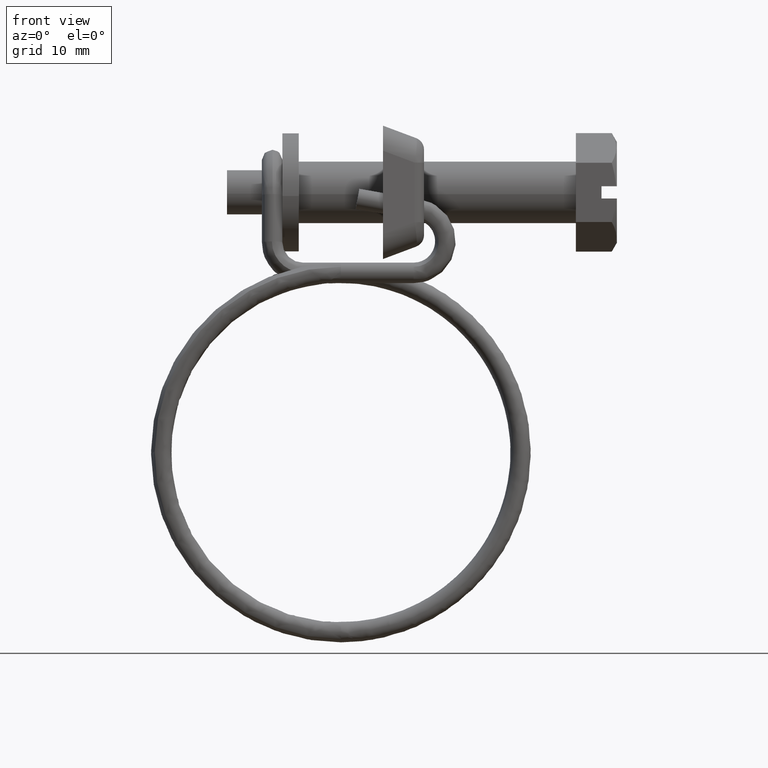
[diagram: clean part render]
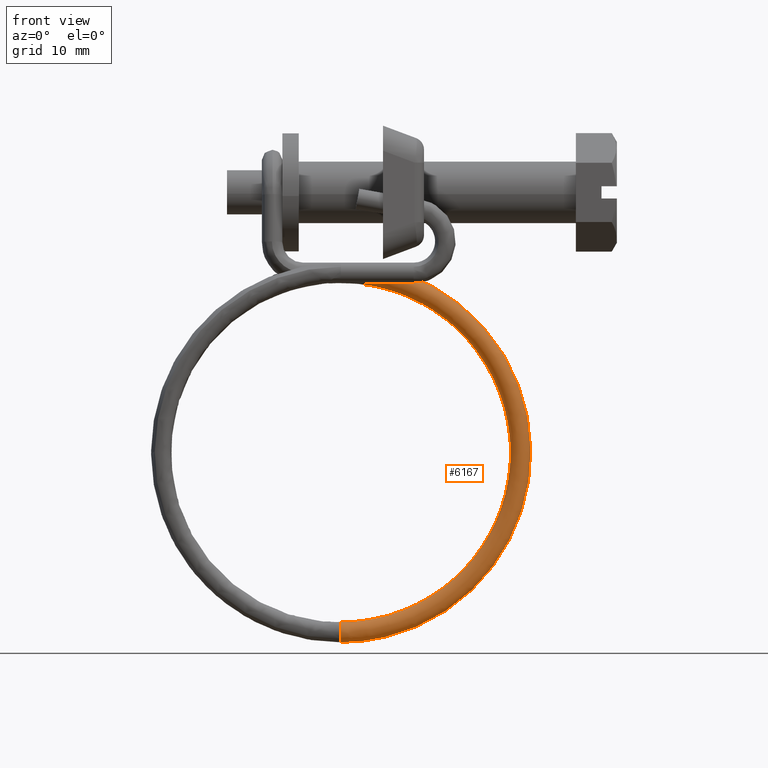
[diagram: same view with one face highlighted and labeled with its STEP entity id]
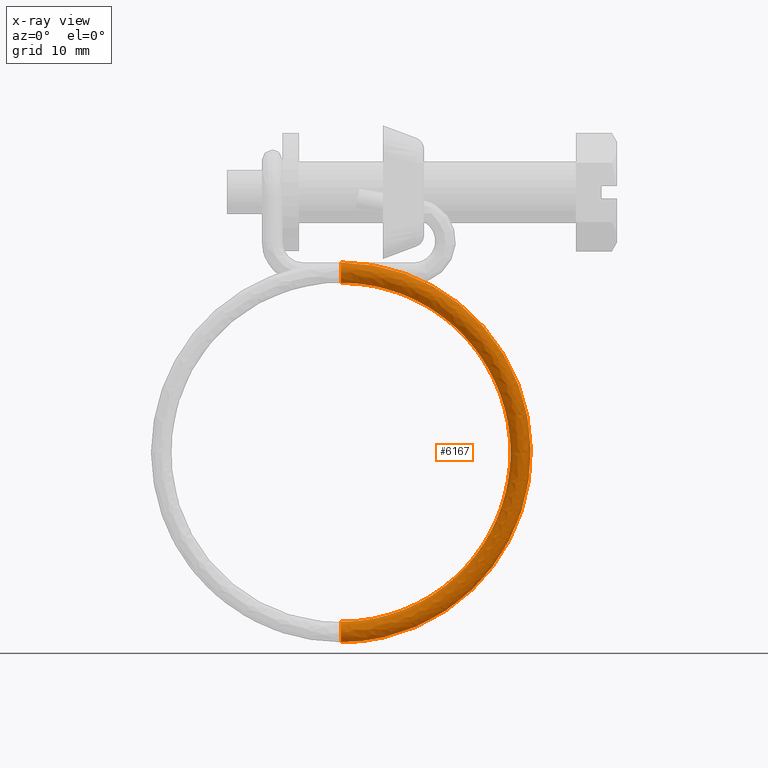
[diagram: x-ray of the same camera — body ghosted, the highlighted face saturated]
A machine part, front view. The second image highlights one B-rep face of the part: STEP entity #6167.
The next image is the same camera in x-ray: the body ghosted, the highlighted face saturated — about 0% of this face is hidden behind the body in this view.
In plain terms, the highlighted face is a freeform B-spline surface patch.
Its self-contained STEP definition (entity closure, byte-faithful):
#4777=CARTESIAN_POINT('',(-22.899997493855611,-3.594625165116509,-8.558833505469480));
#4778=VERTEX_POINT('',#4777);
#4784=CARTESIAN_POINT('',(-22.899997537313531,-4.300002000000000,-8.850001000000280));
#4785=VERTEX_POINT('',#4784);
#4786=CARTESIAN_POINT('',(-22.899997537313531,-4.300002000000000,-8.850001000000280));
#4787=CARTESIAN_POINT('',(-22.899997537313475,-3.887219142246950,-8.850001000000280));
#4788=CARTESIAN_POINT('',(-22.899997493855608,-3.594625165116509,-8.558833505469480));
#4796=(BOUNDED_CURVE()B_SPLINE_CURVE(2,(#4786,#4787,#4788),.UNSPECIFIED.,.F.,.U.)B_SPLINE_CURVE_WITH_KNOTS((3,3),(0.500000000000000,0.624631288991224),.UNSPECIFIED.)CURVE()GEOMETRIC_REPRESENTATION_ITEM()RATIONAL_B_SPLINE_CURVE((1.0,0.853985362409963,0.853554664775388))REPRESENTATION_ITEM(''));
#4797=EDGE_CURVE('',#4785,#4778,#4796,.T.);
#4799=CARTESIAN_POINT('',(-22.899997487115559,-5.048016384914225,-8.513685173815059));
#4800=VERTEX_POINT('',#4799);
#4801=CARTESIAN_POINT('',(-22.899997487115559,-5.048016384914226,-8.513685173815061));
#4802=CARTESIAN_POINT('',(-22.899997537313524,-4.749616013432974,-8.850000648478401));
#4803=CARTESIAN_POINT('',(-22.899997537313531,-4.300002000000000,-8.850001000000280));
#4811=(BOUNDED_CURVE()B_SPLINE_CURVE(2,(#4801,#4802,#4803),.UNSPECIFIED.,.F.,.U.)B_SPLINE_CURVE_WITH_KNOTS((3,3),(0.365994075443312,0.500000000000000),.UNSPECIFIED.)CURVE()GEOMETRIC_REPRESENTATION_ITEM()RATIONAL_B_SPLINE_CURVE((0.854313569656607,0.843002293666076,1.0))REPRESENTATION_ITEM(''));
#4812=EDGE_CURVE('',#4800,#4785,#4811,.T.);
#4862=CARTESIAN_POINT('',(-22.899997238802140,-4.306285020212719,-6.850040477901752));
#4863=VERTEX_POINT('',#4862);
#4864=CARTESIAN_POINT('',(-22.899997238802143,-4.306285020212720,-6.850040477901751));
#4865=CARTESIAN_POINT('',(-22.899997239734166,-5.300001690583930,-6.856284072009016));
#4866=CARTESIAN_POINT('',(-22.899997388056391,-5.300001341734709,-7.850010371521843));
#4867=CARTESIAN_POINT('',(-22.899997444725919,-5.300001208449774,-8.229683704826941));
#4868=CARTESIAN_POINT('',(-22.899997487115570,-5.048016384914225,-8.513685173815059));
#4876=(BOUNDED_CURVE()B_SPLINE_CURVE(2,(#4864,#4865,#4866,#4867,#4868),.UNSPECIFIED.,.F.,.U.)B_SPLINE_CURVE_WITH_KNOTS((3,2,3),(0.001109280935318,0.250000000000000,0.365994075443312),.UNSPECIFIED.)CURVE()GEOMETRIC_REPRESENTATION_ITEM()RATIONAL_B_SPLINE_CURVE((0.997412326092978,0.708406384641402,1.0,0.864104487520472,0.854313569656607))REPRESENTATION_ITEM(''));
#4877=EDGE_CURVE('',#4863,#4800,#4876,.T.);
#4879=CARTESIAN_POINT('',(-22.899997371410659,-3.302436454690028,-7.780265909787154));
#4880=VERTEX_POINT('',#4879);
#4894=CARTESIAN_POINT('',(-22.899997493855608,-3.594625165116509,-8.558833505469480));
#4895=CARTESIAN_POINT('',(-22.899997450096347,-3.300001999999999,-8.265646715847154));
#4896=CARTESIAN_POINT('',(-22.899997388059681,-3.300002000000000,-7.850001000000290));
#4897=CARTESIAN_POINT('',(-22.899997382849225,-3.300002000000000,-7.815090961440141));
#4898=CARTESIAN_POINT('',(-22.899997371410663,-3.302436454690028,-7.780265909787154));
#4906=(BOUNDED_CURVE()B_SPLINE_CURVE(2,(#4894,#4895,#4896,#4897,#4898),.UNSPECIFIED.,.F.,.U.)B_SPLINE_CURVE_WITH_KNOTS((3,2,3),(0.624631288991224,0.750000000000000,0.762166630449930),.UNSPECIFIED.)CURVE()GEOMETRIC_REPRESENTATION_ITEM()RATIONAL_B_SPLINE_CURVE((0.853554664775388,0.853121418776584,1.0,0.985745905781624,0.972879205937277))REPRESENTATION_ITEM(''));
#4907=EDGE_CURVE('',#4778,#4880,#4906,.T.);
#6029=CARTESIAN_POINT('',(-25.384641624035474,-3.303985178550675,-7.934457356040085));
#6030=CARTESIAN_POINT('',(-5.308109697518043,-3.303985178550673,-5.070177726836388));
#6031=CARTESIAN_POINT('',(-5.308109697518043,-3.303985178550676,-25.350000999999907));
#6032=CARTESIAN_POINT('',(-5.308109697518037,-3.303985178550673,-45.629827994496686));
#6033=CARTESIAN_POINT('',(-25.384644787739980,-3.303985178550674,-42.765544192599862));
#6034=CARTESIAN_POINT('',(-25.383070318414077,-3.303207486802163,-7.945471073818343));
#6035=CARTESIAN_POINT('',(-5.319234938219031,-3.303207486802161,-5.083002836100268));
#6036=CARTESIAN_POINT('',(-5.319234938219031,-3.303207486802162,-25.350000999999907));
#6037=CARTESIAN_POINT('',(-5.319234938219026,-3.303207486802162,-45.617002882879405));
#6038=CARTESIAN_POINT('',(-25.383073480117837,-3.303207486802161,-42.754530475107039));
#6039=CARTESIAN_POINT('',(-25.377479876787852,-3.300440590111870,-7.984656032803364));
#6040=CARTESIAN_POINT('',(-5.358816677041799,-3.300440590111871,-5.128632421913284));
#6041=CARTESIAN_POINT('',(-5.358816677041797,-3.300440590111870,-25.350000999999899));
#6042=CARTESIAN_POINT('',(-5.358816677041795,-3.300440590111870,-45.571373288693415));
#6043=CARTESIAN_POINT('',(-25.377483031373298,-3.300440590111871,-42.715345517137600));
#6044=CARTESIAN_POINT('',(-25.373438031854082,-3.300080955796183,-8.012986447204098));
#6045=CARTESIAN_POINT('',(-5.387433960116649,-3.300080955796185,-5.161622250370446));
#6046=CARTESIAN_POINT('',(-5.387433960116649,-3.300080955796184,-25.350000999999899));
#6047=CARTESIAN_POINT('',(-5.387433960116645,-3.300080955796184,-45.538383454182657));
#6048=CARTESIAN_POINT('',(-25.373441181293025,-3.300080955796184,-42.687015103471111));
#6049=CARTESIAN_POINT('',(-25.232211284502934,-3.287514915912832,-9.002883967392053));
#6050=CARTESIAN_POINT('',(-6.387355004320466,-3.287514915912832,-6.314325098950029));
#6051=CARTESIAN_POINT('',(-6.387355004320466,-3.287514915912832,-25.350000999999896));
#6052=CARTESIAN_POINT('',(-6.387355004320463,-3.287514915912833,-44.385680394082904));
#6053=CARTESIAN_POINT('',(-25.232214254117270,-3.287514915912832,-41.697117608938392));
#6054=CARTESIAN_POINT('',(-25.230436483432289,-4.287435960116647,-9.015324041327112));
#6055=CARTESIAN_POINT('',(-6.399921044203819,-4.287435960116648,-6.328811152676839));
#6056=CARTESIAN_POINT('',(-6.399921044203818,-4.287435960116647,-25.350000999999899));
#6057=CARTESIAN_POINT('',(-6.399921044203816,-4.287435960116647,-44.371194337697901));
#6058=CARTESIAN_POINT('',(-25.230439450786765,-4.287435960116647,-41.684677535325754));
#6059=CARTESIAN_POINT('',(-25.228661682361640,-5.287357004320461,-9.027764115262169));
#6060=CARTESIAN_POINT('',(-6.412487084087175,-5.287357004320465,-6.343297206403651));
#6061=CARTESIAN_POINT('',(-6.412487084087172,-5.287357004320464,-25.350000999999896));
#6062=CARTESIAN_POINT('',(-6.412487084087168,-5.287357004320462,-44.356708281312919));
#6063=CARTESIAN_POINT('',(-25.228664647456263,-5.287357004320464,-41.672237461713095));
#6064=CARTESIAN_POINT('',(-25.369888429712798,-5.299923044203815,-8.037866595074211));
#6065=CARTESIAN_POINT('',(-5.412566039883358,-5.299923044203815,-5.190594357824065));
#6066=CARTESIAN_POINT('',(-5.412566039883355,-5.299923044203815,-25.350000999999899));
#6067=CARTESIAN_POINT('',(-5.412566039883352,-5.299923044203815,-45.509411341412658));
#6068=CARTESIAN_POINT('',(-25.369891574632014,-5.299923044203815,-42.662134956245815));
#6069=CARTESIAN_POINT('',(-25.511115177063942,-5.312489084087168,-7.047969074886256));
#6070=CARTESIAN_POINT('',(-4.412644995679544,-5.312489084087170,-4.037891509244482));
#6071=CARTESIAN_POINT('',(-4.412644995679539,-5.312489084087169,-25.350000999999896));
#6072=CARTESIAN_POINT('',(-4.412644995679536,-5.312489084087169,-46.662114401512412));
#6073=CARTESIAN_POINT('',(-25.511118501807768,-5.312489084087169,-43.652032450778535));
#6074=CARTESIAN_POINT('',(-25.512914515847175,-4.298743518586963,-7.035357009304416));
#6075=CARTESIAN_POINT('',(-4.399905222592963,-4.298743518586965,-4.023205176946271));
#6076=CARTESIAN_POINT('',(-4.399905222592965,-4.298743518586965,-25.350000999999910));
#6077=CARTESIAN_POINT('',(-4.399905222592962,-4.298743518586965,-46.676800736505555));
#6078=CARTESIAN_POINT('',(-25.512917842882114,-4.298743518586965,-43.664644516033491));
#6079=CARTESIAN_POINT('',(-25.512938774117064,-4.285076435014014,-7.035186976349205));
#6080=CARTESIAN_POINT('',(-4.399733467914671,-4.285076435014017,-4.023007179206276));
#6081=CARTESIAN_POINT('',(-4.399733467914670,-4.285076435014016,-25.350000999999899));
#6082=CARTESIAN_POINT('',(-4.399733467914667,-4.285076435014015,-46.676998734281867));
#6083=CARTESIAN_POINT('',(-25.512942101182883,-4.285076435014014,-43.664814548984282));
#6091=(BOUNDED_SURFACE()B_SPLINE_SURFACE(2,2,((#6029,#6034,#6039,#6044,#6049,#6054,#6059,#6064,#6069,#6074,#6079),(#6030,#6035,#6040,#6045,#6050,#6055,#6060,#6065,#6070,#6075,#6080),(#6031,#6036,#6041,#6046,#6051,#6056,#6061,#6066,#6071,#6076,#6081),(#6032,#6037,#6042,#6047,#6052,#6057,#6062,#6067,#6072,#6077,#6082),(#6033,#6038,#6043,#6048,#6053,#6058,#6063,#6068,#6073,#6078,#6083)),.UNSPECIFIED.,.F.,.F.,.U.)B_SPLINE_SURFACE_WITH_KNOTS((3,2,3),(3,1,2,2,2,1,3),(0.0,33.770782778250073,67.541569608173361),(0.0,0.025223173646860,0.091497280422581,1.748351529914964,3.405205779407347,5.062060028899730,5.094642044299226),.UNSPECIFIED.)GEOMETRIC_REPRESENTATION_ITEM()RATIONAL_B_SPLINE_SURFACE(((0.965014474259884,0.969098491305001,0.983913298436704,0.995577199737466,0.703979389129076,0.995577199737466,0.703979389129076,0.995577199737466,0.703979389129076,1.001311466561849,1.007045733386232),(0.633749738992534,0.636431817661218,0.646161081214640,0.653821064149779,0.462321308142913,0.653821064149779,0.462321308142913,0.653821064149779,0.462321308142913,0.657586904145136,0.661352744140493),(0.969301501193838,0.973403661273633,0.988284282420452,1.0,0.707106781186548,1.0,0.707106781186548,1.0,0.707106781186548,1.005759741008427,1.011519482016854),(0.633749698734477,0.636431777232786,0.646161040168170,0.653821022616719,0.462321278774605,0.653821022616719,0.462321278774605,0.653821022616719,0.462321278774605,0.657586862372857,0.661352702128994),(0.965014553747329,0.969098571128843,0.983913379480830,0.995577281742337,0.703979447115277,0.995577281742337,0.703979447115277,0.995577281742337,0.703979447115277,1.001311549039047,1.007045816335757)))REPRESENTATION_ITEM('')SURFACE());
#6092=CARTESIAN_POINT('',(-22.899999999999949,-4.300002000000002,-41.850000999999892));
#6093=VERTEX_POINT('',#6092);
#6094=CARTESIAN_POINT('',(-22.899999999948619,-3.302485887047033,-42.919730658116258));
#6095=VERTEX_POINT('',#6094);
#6096=CARTESIAN_POINT('',(-22.899999999999949,-4.300002000000002,-41.850000999999892));
#6097=CARTESIAN_POINT('',(-22.899999999993678,-4.038196562363256,-41.850001438668457));
#6098=CARTESIAN_POINT('',(-22.899999999984690,-3.778000607902756,-41.957775164691583));
#6099=CARTESIAN_POINT('',(-22.899999999966330,-3.407742631726008,-42.328016695221763));
#6100=CARTESIAN_POINT('',(-22.899999999957071,-3.299960596688536,-42.588204614319579));
#6101=CARTESIAN_POINT('',(-22.899999999949749,-3.299953531839383,-42.873276473191083));
#6102=CARTESIAN_POINT('',(-22.899999999949170,-3.300804581628336,-42.896535733665687));
#6103=CARTESIAN_POINT('',(-22.899999999948619,-3.302485887047033,-42.919730658116258));
#6104=B_SPLINE_CURVE_WITH_KNOTS('',3,(#6096,#6097,#6098,#6099,#6100,#6101,#6102,#6103),.UNSPECIFIED.,.F.,.U.,(4,2,2,4),(0.500000000000000,0.625000000000000,0.750000000000000,0.761111541838291),.UNSPECIFIED.);
#6105=EDGE_CURVE('',#6093,#6095,#6104,.T.);
#6106=ORIENTED_EDGE('',*,*,#6105,.F.);
#6107=CARTESIAN_POINT('',(-22.899999999999970,-5.028950033060481,-43.534537691727238));
#6108=VERTEX_POINT('',#6107);
#6109=CARTESIAN_POINT('',(-22.899999999999970,-5.028950033060481,-43.534537691727238));
#6110=CARTESIAN_POINT('',(-22.899999999999942,-5.200678353061446,-43.351170000365492));
#6111=CARTESIAN_POINT('',(-22.899999999999949,-5.300001999999999,-43.101328363330857));
#6112=CARTESIAN_POINT('',(-22.899999999999949,-5.300002000000001,-42.588201612200763));
#6113=CARTESIAN_POINT('',(-22.899999999999949,-5.192228903609815,-42.328014341236617));
#6114=CARTESIAN_POINT('',(-22.899999999999949,-4.821988658763284,-41.957774096390096));
#6115=CARTESIAN_POINT('',(-22.899999999999949,-4.561801387799152,-41.850000999999892));
#6116=CARTESIAN_POINT('',(-22.899999999999949,-4.300002000000002,-41.850000999999892));
#6117=B_SPLINE_CURVE_WITH_KNOTS('',3,(#6109,#6110,#6111,#6112,#6113,#6114,#6115,#6116),.UNSPECIFIED.,.F.,.U.,(4,2,2,4),(0.130000023374876,0.250000000000000,0.375000000000000,0.500000000000000),.UNSPECIFIED.);
#6118=EDGE_CURVE('',#6108,#6093,#6117,.T.);
#6119=ORIENTED_EDGE('',*,*,#6118,.F.);
#6120=CARTESIAN_POINT('',(-22.899999999680229,-4.306285019941678,-43.849961522101808));
#6121=VERTEX_POINT('',#6120);
#6122=CARTESIAN_POINT('',(-22.899999999680229,-4.306285019941678,-43.849961522101808));
#6123=CARTESIAN_POINT('',(-22.899999999776998,-4.565959695528956,-43.848258487162042));
#6124=CARTESIAN_POINT('',(-22.899999999890142,-4.823469649266767,-43.740740414064732));
#6125=CARTESIAN_POINT('',(-22.899999999992119,-5.014513617673533,-43.549702481591403));
#6126=CARTESIAN_POINT('',(-22.899999999996041,-5.021794702308013,-43.542177764380732));
#6127=CARTESIAN_POINT('',(-22.899999999999970,-5.028950033060481,-43.534537691727238));
#6128=B_SPLINE_CURVE_WITH_KNOTS('',3,(#6122,#6123,#6124,#6125,#6126,#6127),.UNSPECIFIED.,.F.,.U.,(4,2,4),(0.001000048621619,0.125000000000000,0.130000023374876),.UNSPECIFIED.);
#6129=EDGE_CURVE('',#6121,#6108,#6128,.T.);
#6130=ORIENTED_EDGE('',*,*,#6129,.F.);
#6131=CARTESIAN_POINT('',(-22.899997238802140,-4.306285020212720,-6.850040477901752));
#6132=CARTESIAN_POINT('',(-4.400078955790296,-4.306285020212720,-6.850043239096249));
#6133=CARTESIAN_POINT('',(-4.400078955793241,-4.306285020077199,-25.350000999998731));
#6134=CARTESIAN_POINT('',(-4.400078955796182,-4.306285019941678,-43.849961521779079));
#6135=CARTESIAN_POINT('',(-22.899999999680226,-4.306285019941678,-43.849961522101822));
#6143=(BOUNDED_CURVE()B_SPLINE_CURVE(2,(#6131,#6132,#6133,#6134,#6135),.UNSPECIFIED.,.F.,.U.)B_SPLINE_CURVE_WITH_KNOTS((3,2,3),(-3.806731535581619,-2.0,-0.193268279650061),.UNSPECIFIED.)CURVE()GEOMETRIC_REPRESENTATION_ITEM()RATIONAL_B_SPLINE_CURVE((0.939171312253929,0.685263253220704,1.0,0.685263221033642,0.939171364186570))REPRESENTATION_ITEM(''));
#6144=EDGE_CURVE('',#4863,#6121,#6143,.T.);
#6145=ORIENTED_EDGE('',*,*,#6144,.F.);
#6146=ORIENTED_EDGE('',*,*,#4877,.T.);
#6147=ORIENTED_EDGE('',*,*,#4812,.T.);
#6148=ORIENTED_EDGE('',*,*,#4797,.T.);
#6149=ORIENTED_EDGE('',*,*,#4907,.T.);
#6150=CARTESIAN_POINT('',(-22.899997371410659,-3.302436454690027,-7.780265909787155));
#6151=CARTESIAN_POINT('',(-5.330266748424283,-3.302436454691877,-7.780268538375754));
#6152=CARTESIAN_POINT('',(-5.330266748424421,-3.302461170866682,-25.349998283951670));
#6153=CARTESIAN_POINT('',(-5.330266748424557,-3.302485887045184,-42.919730658064942));
#6154=CARTESIAN_POINT('',(-22.899999999948623,-3.302485887047034,-42.919730658116251));
#6162=(BOUNDED_CURVE()B_SPLINE_CURVE(2,(#6150,#6151,#6152,#6153,#6154),.UNSPECIFIED.,.F.,.U.)B_SPLINE_CURVE_WITH_KNOTS((3,2,3),(-3.806731535142498,-2.0,-0.193268279632281),.UNSPECIFIED.)CURVE()GEOMETRIC_REPRESENTATION_ITEM()RATIONAL_B_SPLINE_CURVE((0.918045405547940,0.669848805169753,0.977505800795127,0.669848773628910,0.918045456437930))REPRESENTATION_ITEM(''));
#6163=EDGE_CURVE('',#4880,#6095,#6162,.T.);
#6164=ORIENTED_EDGE('',*,*,#6163,.T.);
#6165=EDGE_LOOP('',(#6106,#6119,#6130,#6145,#6146,#6147,#6148,#6149,#6164));
#6166=FACE_OUTER_BOUND('',#6165,.T.);
#6167=ADVANCED_FACE('',(#6166),#6091,.T.);